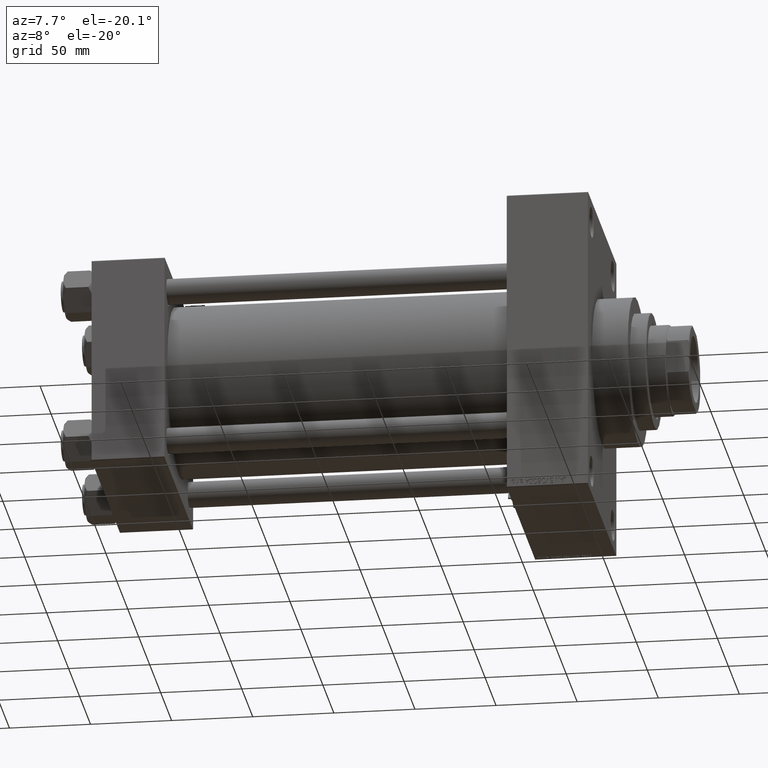
[diagram: clean part render]
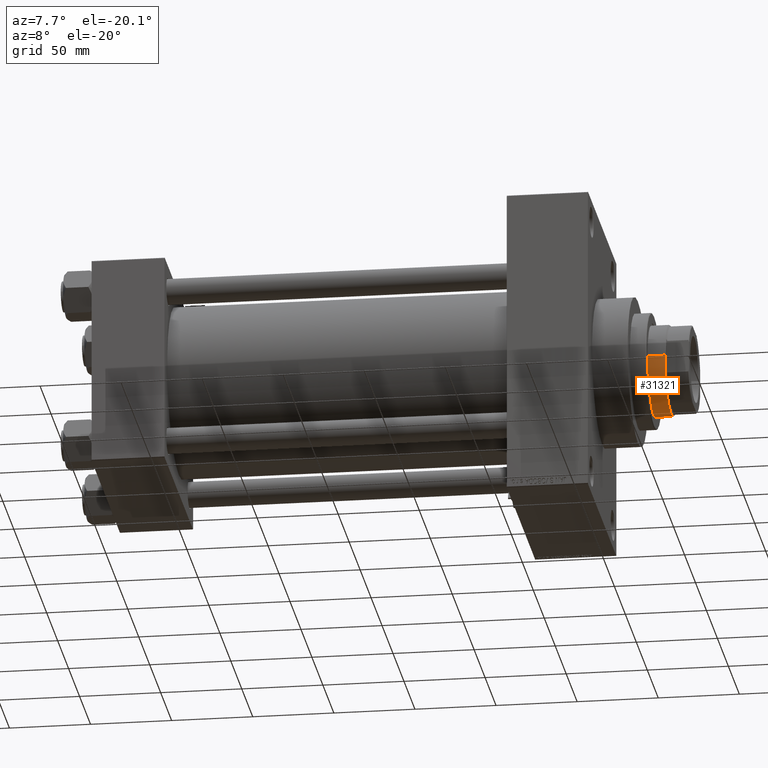
[diagram: same view with one face highlighted and labeled with its STEP entity id]
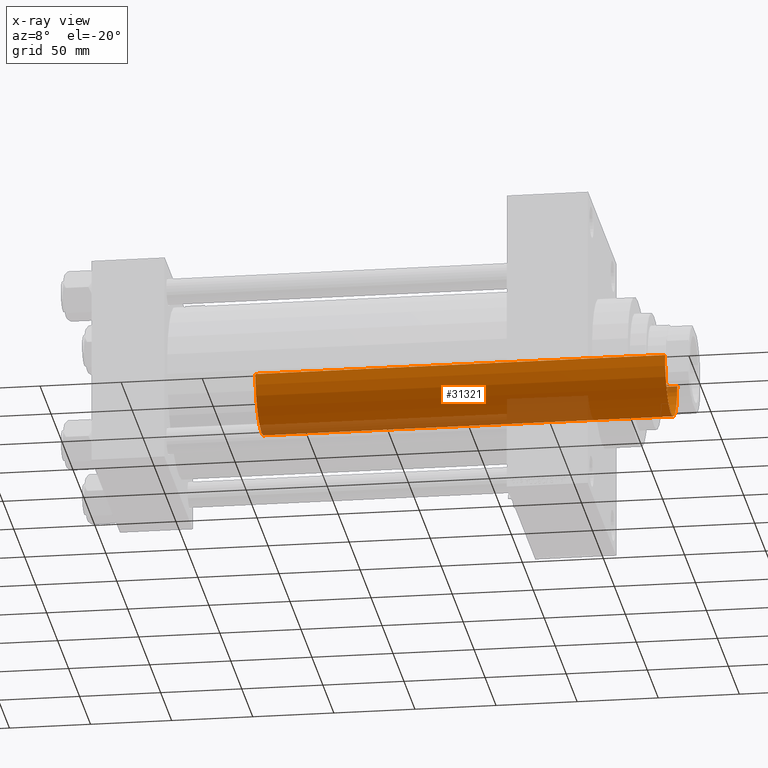
[diagram: x-ray of the same camera — body ghosted, the highlighted face saturated]
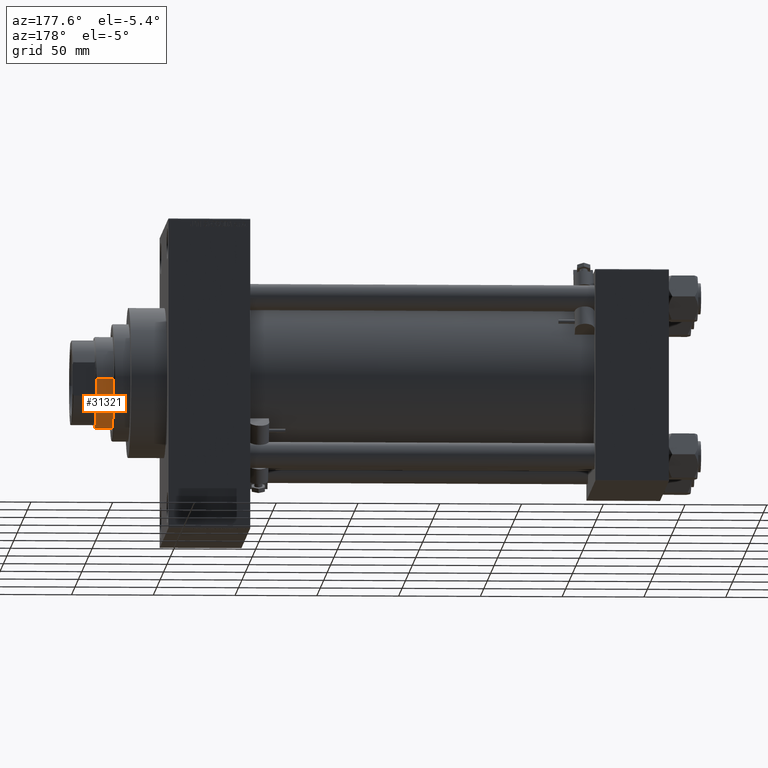
[diagram: same view with one face highlighted and labeled with its STEP entity id]
A machine part, auxiliary view. The second image highlights one B-rep face of the part: STEP entity #31321.
The next image is the same camera in x-ray: the body ghosted, the highlighted face saturated — about 18% of this face is hidden behind the body in this view.
A second angle (auxiliary view) of the same face is appended — the face is thin or edge-on in the first view.
In plain terms, the highlighted cylindrical surface (partial cylindrical patch) has radius 28 mm, axis along (-1, 0, 0).
Its self-contained STEP definition (entity closure, byte-faithful):
#639 = CYLINDRICAL_SURFACE ( 'NONE', #13216, 28.00000000000000000 ) ;
#1244 = CIRCLE ( 'NONE', #28837, 28.00000000000000000 ) ;
#1353 = FACE_OUTER_BOUND ( 'NONE', #7673, .T. ) ;
#3690 = EDGE_CURVE ( 'NONE', #4311, #44627, #32472, .T. ) ;
#4311 = VERTEX_POINT ( 'NONE', #13605 ) ;
#6091 = VERTEX_POINT ( 'NONE', #18396 ) ;
#7673 = EDGE_LOOP ( 'NONE', ( #8350, #33216, #46519, #40328 ) ) ;
#8350 = ORIENTED_EDGE ( 'NONE', *, *, #11534, .T. ) ;
#8520 = CARTESIAN_POINT ( 'NONE',  ( 0.000000000000000000, 0.000000000000000000, 303.4999999999999432 ) ) ;
#9280 = VECTOR ( 'NONE', #42982, 1000.000000000000000 ) ;
#11207 = CIRCLE ( 'NONE', #13569, 28.00000000000000000 ) ;
#11534 = EDGE_CURVE ( 'NONE', #4311, #12464, #11207, .T. ) ;
#11986 = CARTESIAN_POINT ( 'NONE',  ( 0.000000000000000000, 0.000000000000000000, 304.0000000000000000 ) ) ;
#12464 = VERTEX_POINT ( 'NONE', #45254 ) ;
#13216 = AXIS2_PLACEMENT_3D ( 'NONE', #11986, #23592, #39110 ) ;
#13569 = AXIS2_PLACEMENT_3D ( 'NONE', #8520, #23594, #27042 ) ;
#13605 = CARTESIAN_POINT ( 'NONE',  ( -28.00000000000000000, 0.000000000000000000, 303.4999999999999432 ) ) ;
#14944 = DIRECTION ( 'NONE',  ( -0.000000000000000000, -0.000000000000000000, -1.000000000000000000 ) ) ;
#17865 = VECTOR ( 'NONE', #14944, 1000.000000000000000 ) ;
#17875 = DIRECTION ( 'NONE',  ( 0.000000000000000000, 0.000000000000000000, 1.000000000000000000 ) ) ;
#18396 = CARTESIAN_POINT ( 'NONE',  ( 28.00000000000000000, 3.429011037612589276E-15, 51.00000000000000000 ) ) ;
#21017 = CARTESIAN_POINT ( 'NONE',  ( 28.00000000000000000, 3.429011037612589276E-15, 304.0000000000000000 ) ) ;
#23592 = DIRECTION ( 'NONE',  ( -0.000000000000000000, -0.000000000000000000, -1.000000000000000000 ) ) ;
#23594 = DIRECTION ( 'NONE',  ( 0.000000000000000000, 0.000000000000000000, -1.000000000000000000 ) ) ;
#27042 = DIRECTION ( 'NONE',  ( 1.000000000000000000, 0.000000000000000000, 0.000000000000000000 ) ) ;
#27180 = EDGE_CURVE ( 'NONE', #6091, #44627, #1244, .T. ) ;
#28245 = CARTESIAN_POINT ( 'NONE',  ( 0.000000000000000000, 0.000000000000000000, 51.00000000000000000 ) ) ;
#28837 = AXIS2_PLACEMENT_3D ( 'NONE', #28245, #17875, #43066 ) ;
#31321 = ADVANCED_FACE ( 'NONE', ( #1353 ), #639, .T. ) ;
#32346 = LINE ( 'NONE', #21017, #9280 ) ;
#32472 = LINE ( 'NONE', #37642, #17865 ) ;
#33216 = ORIENTED_EDGE ( 'NONE', *, *, #42910, .T. ) ;
#37642 = CARTESIAN_POINT ( 'NONE',  ( -28.00000000000000000, 0.000000000000000000, 304.0000000000000000 ) ) ;
#39110 = DIRECTION ( 'NONE',  ( -1.000000000000000000, 0.000000000000000000, 0.000000000000000000 ) ) ;
#40328 = ORIENTED_EDGE ( 'NONE', *, *, #3690, .F. ) ;
#42910 = EDGE_CURVE ( 'NONE', #12464, #6091, #32346, .T. ) ;
#42982 = DIRECTION ( 'NONE',  ( -0.000000000000000000, -0.000000000000000000, -1.000000000000000000 ) ) ;
#43066 = DIRECTION ( 'NONE',  ( 1.000000000000000000, 0.000000000000000000, 0.000000000000000000 ) ) ;
#44473 = CARTESIAN_POINT ( 'NONE',  ( -28.00000000000000000, 0.000000000000000000, 51.00000000000000000 ) ) ;
#44627 = VERTEX_POINT ( 'NONE', #44473 ) ;
#45254 = CARTESIAN_POINT ( 'NONE',  ( 28.00000000000000000, 3.429011037612589276E-15, 303.4999999999999432 ) ) ;
#46519 = ORIENTED_EDGE ( 'NONE', *, *, #27180, .T. ) ;